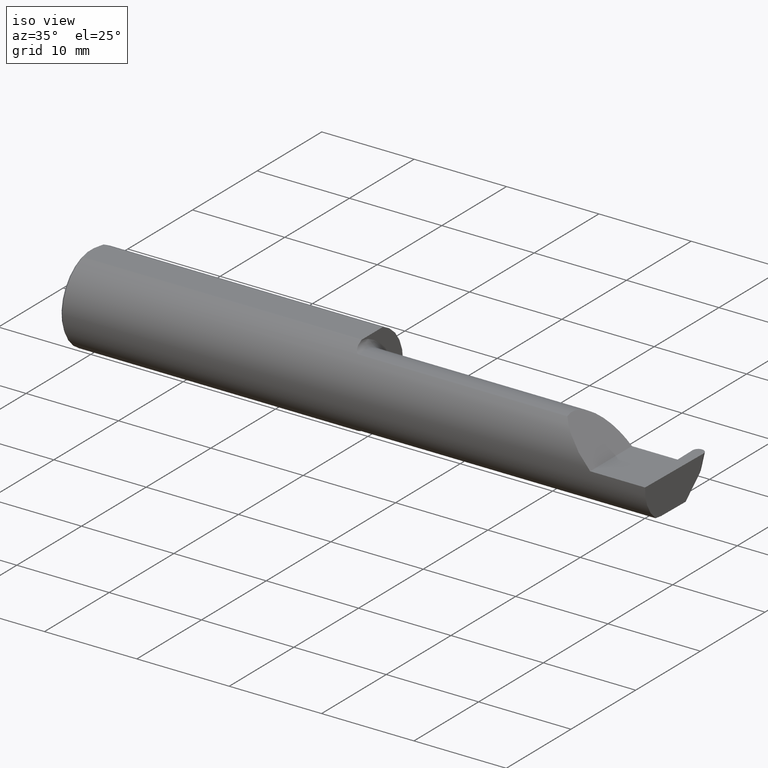
[diagram: clean part render]
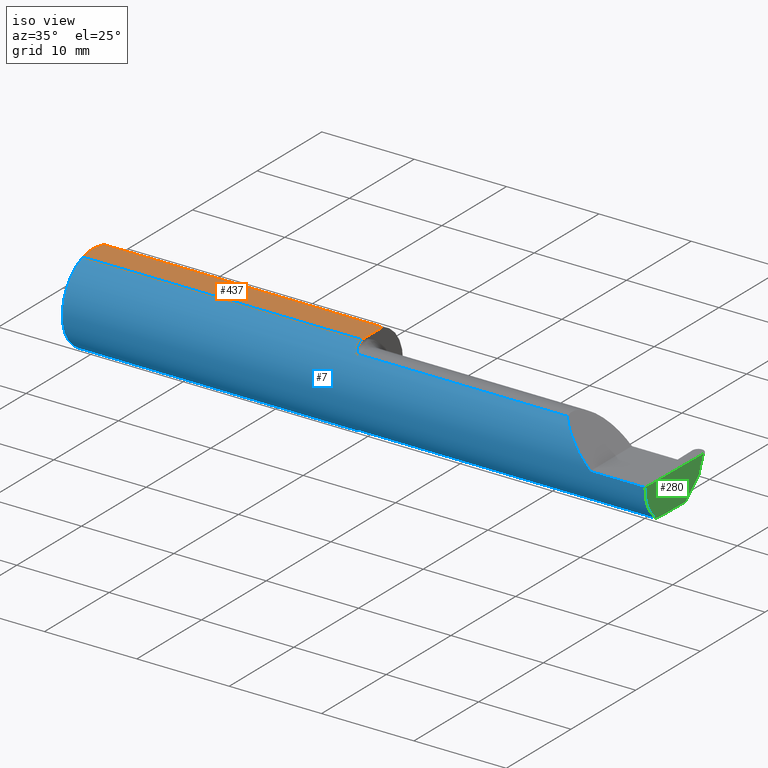
[diagram: same view with three faces highlighted in distinct colors, each labeled with its STEP entity id]
A machine part, iso view with three faces highlighted in distinct colors.
Their STEP definitions:

[orange] entity #437 — the highlighted planar face has unit normal (0, 0, 1).
#3 = LINE ( 'NONE', #265, #423 ) ;
#12 = DIRECTION ( 'NONE',  ( -6.813485650141123812E-17, 1.000000000000000000, 0.000000000000000000 ) ) ;
#13 = LINE ( 'NONE', #669, #501 ) ;
#20 = CARTESIAN_POINT ( 'NONE',  ( 0.000000000000000000, 0.01880691362238934988, 0.1763499999999999235 ) ) ;
#31 = CARTESIAN_POINT ( 'NONE',  ( 0.01000000000000013205, -0.06325108694718235836, 0.1763499999999999235 ) ) ;
#37 = CARTESIAN_POINT ( 'NONE',  ( 0.000000000000000000, -0.01880691362238934641, 0.1763499999999999235 ) ) ;
#81 = LINE ( 'NONE', #347, #158 ) ;
#83 = EDGE_CURVE ( 'NONE', #698, #304, #13, .T. ) ;
#109 = CARTESIAN_POINT ( 'NONE',  ( 1.199999999999999956, 0.06325108694718235836, 0.1763499999999999235 ) ) ;
#123 = LINE ( 'NONE', #204, #469 ) ;
#130 = CARTESIAN_POINT ( 'NONE',  ( 0.001616639753276021213, 0.03405189565400638246, 0.1763499999999999235 ) ) ;
#140 = CARTESIAN_POINT ( 'NONE',  ( 0.000000000000000000, 0.01880691362238934988, 0.1763499999999999235 ) ) ;
#144 = ORIENTED_EDGE ( 'NONE', *, *, #657, .F. ) ;
#158 = VECTOR ( 'NONE', #297, 39.37007874015748143 ) ;
#160 = ORIENTED_EDGE ( 'NONE', *, *, #600, .T. ) ;
#181 = DIRECTION ( 'NONE',  ( 0.000000000000000000, 0.000000000000000000, 1.000000000000000000 ) ) ;
#191 = FACE_OUTER_BOUND ( 'NONE', #561, .T. ) ;
#196 = ORIENTED_EDGE ( 'NONE', *, *, #553, .F. ) ;
#204 = CARTESIAN_POINT ( 'NONE',  ( 0.000000000000000000, -0.06325108694718235836, 0.1763499999999999235 ) ) ;
#208 = DIRECTION ( 'NONE',  ( -0.000000000000000000, 1.000000000000000000, -0.000000000000000000 ) ) ;
#265 = CARTESIAN_POINT ( 'NONE',  ( 0.000000000000000000, 0.1873499999999998500, 0.1763499999999999235 ) ) ;
#277 = CARTESIAN_POINT ( 'NONE',  ( 2.876828993045917215, 0.1873499999999998500, 0.1763499999999999235 ) ) ;
#283 = EDGE_CURVE ( 'NONE', #584, #706, #3, .T. ) ;
#289 = CARTESIAN_POINT ( 'NONE',  ( 0.005151108632379722968, -0.04888864921576022843, 0.1763499999999999235 ) ) ;
#291 = CARTESIAN_POINT ( 'NONE',  ( 1.199999999999999956, -0.06325108694718287183, 0.1763499999999999235 ) ) ;
#297 = DIRECTION ( 'NONE',  ( -1.000000000000000000, -0.000000000000000000, -0.000000000000000000 ) ) ;
#302 = DIRECTION ( 'NONE',  ( 1.000000000000000000, 0.000000000000000000, 0.000000000000000000 ) ) ;
#304 = VERTEX_POINT ( 'NONE', #109 ) ;
#347 = CARTESIAN_POINT ( 'NONE',  ( 0.000000000000000000, 0.06325108694718235836, 0.1763499999999999235 ) ) ;
#351 = CARTESIAN_POINT ( 'NONE',  ( 0.005155213631852488369, 0.04890080824240059659, 0.1763499999999999235 ) ) ;
#353 = CARTESIAN_POINT ( 'NONE',  ( 0.000000000000000000, -0.01880691362238934641, 0.1763499999999999235 ) ) ;
#365 = ORIENTED_EDGE ( 'NONE', *, *, #83, .T. ) ;
#389 = DIRECTION ( 'NONE',  ( 1.000000000000000000, 0.000000000000000000, -0.000000000000000000 ) ) ;
#395 = CARTESIAN_POINT ( 'NONE',  ( 0.001595548104417008695, -0.03385300050298640367, 0.1763499999999999235 ) ) ;
#423 = VECTOR ( 'NONE', #208, 39.37007874015748143 ) ;
#437 = ADVANCED_FACE ( 'NONE', ( #191 ), #505, .T. ) ;
#441 = EDGE_CURVE ( 'NONE', #533, #698, #123, .T. ) ;
#469 = VECTOR ( 'NONE', #302, 39.37007874015748143 ) ;
#478 = CARTESIAN_POINT ( 'NONE',  ( 0.01000000000000013205, 0.06325108694718235836, 0.1763499999999999235 ) ) ;
#495 = AXIS2_PLACEMENT_3D ( 'NONE', #277, #181, #389 ) ;
#501 = VECTOR ( 'NONE', #12, 39.37007874015748143 ) ;
#505 = PLANE ( 'NONE',  #495 ) ;
#510 = B_SPLINE_CURVE_WITH_KNOTS ( 'NONE', 3,
 ( #140, #130, #351, #574 ),
 .UNSPECIFIED., .F., .F.,
 ( 4, 4 ),
 ( 0.01188664626022242071, 0.01304646959483746725 ),
 .UNSPECIFIED. ) ;
#533 = VERTEX_POINT ( 'NONE', #31 ) ;
#544 = ORIENTED_EDGE ( 'NONE', *, *, #283, .F. ) ;
#553 = EDGE_CURVE ( 'NONE', #533, #584, #606, .T. ) ;
#561 = EDGE_LOOP ( 'NONE', ( #644, #365, #160, #144, #544, #196 ) ) ;
#574 = CARTESIAN_POINT ( 'NONE',  ( 0.01000000000000013205, 0.06325108694718235836, 0.1763499999999999235 ) ) ;
#584 = VERTEX_POINT ( 'NONE', #37 ) ;
#600 = EDGE_CURVE ( 'NONE', #304, #638, #81, .T. ) ;
#606 = B_SPLINE_CURVE_WITH_KNOTS ( 'NONE', 3,
 ( #641, #289, #395, #353 ),
 .UNSPECIFIED., .F., .F.,
 ( 4, 4 ),
 ( 0.009771445421851331775, 0.01092787937989104369 ),
 .UNSPECIFIED. ) ;
#638 = VERTEX_POINT ( 'NONE', #478 ) ;
#641 = CARTESIAN_POINT ( 'NONE',  ( 0.01000000000000013205, -0.06325108694718235836, 0.1763499999999999235 ) ) ;
#644 = ORIENTED_EDGE ( 'NONE', *, *, #441, .T. ) ;
#657 = EDGE_CURVE ( 'NONE', #706, #638, #510, .T. ) ;
#669 = CARTESIAN_POINT ( 'NONE',  ( 1.199999999999999956, 0.1873499999999997390, 0.1763499999999999235 ) ) ;
#698 = VERTEX_POINT ( 'NONE', #291 ) ;
#706 = VERTEX_POINT ( 'NONE', #20 ) ;

[blue] entity #7 — the highlighted cylindrical surface (partial cylindrical patch) has radius 4.7587 mm, axis along (-1, -0, -0).
#7 = ADVANCED_FACE ( 'NONE', ( #267 ), #610, .T. ) ;
#8 = CARTESIAN_POINT ( 'NONE',  ( 1.213163223656403167, -0.1119926267047279267, 0.1502091925606061362 ) ) ;
#27 = DIRECTION ( 'NONE',  ( 0.000000000000000000, 0.000000000000000000, -1.000000000000000000 ) ) ;
#31 = CARTESIAN_POINT ( 'NONE',  ( 0.01000000000000013205, -0.06325108694718235836, 0.1763499999999999235 ) ) ;
#32 = ORIENTED_EDGE ( 'NONE', *, *, #316, .T. ) ;
#40 = B_SPLINE_CURVE_WITH_KNOTS ( 'NONE', 3,
 ( #118, #328, #563, #616, #281, #121, #231, #8, #663, #554, #60, #68 ),
 .UNSPECIFIED., .F., .F.,
 ( 4, 2, 2, 2, 2, 4 ),
 ( 4.423516731080811751E-05, 0.0004615475116586734692, 0.0008788598560065388277, 0.001296172200354404240, 0.001504828372528336025, 0.001713484544702268027 ),
 .UNSPECIFIED. ) ;
#47 = AXIS2_PLACEMENT_3D ( 'NONE', #89, #454, #666 ) ;
#59 = CARTESIAN_POINT ( 'NONE',  ( 1.215028532764138580, -0.1137241120808236416, -0.1488947809299402958 ) ) ;
#60 = CARTESIAN_POINT ( 'NONE',  ( 1.222161949849308371, -0.1172600179964063821, 0.1461167706989258686 ) ) ;
#61 = EDGE_CURVE ( 'NONE', #521, #146, #40, .T. ) ;
#62 = CARTESIAN_POINT ( 'NONE',  ( 1.206304331342287650, -0.1022198306720692035, -0.1570962426853817762 ) ) ;
#64 = ORIENTED_EDGE ( 'NONE', *, *, #600, .F. ) ;
#66 = CARTESIAN_POINT ( 'NONE',  ( 1.200358271039144276, -0.07873626113568087115, -0.1700887912276896063 ) ) ;
#68 = CARTESIAN_POINT ( 'NONE',  ( 1.225000000000000089, -0.1172600179964007477, 0.1461167706989301984 ) ) ;
#70 = EDGE_CURVE ( 'NONE', #447, #631, #455, .T. ) ;
#76 = CARTESIAN_POINT ( 'NONE',  ( 1.199999999999999956, -0.06851976604679066440, -0.1743704796142198643 ) ) ;
#77 = VERTEX_POINT ( 'NONE', #182 ) ;
#81 = LINE ( 'NONE', #347, #158 ) ;
#89 = CARTESIAN_POINT ( 'NONE',  ( 1.199999999999999956, 0.000000000000000000, 0.000000000000000000 ) ) ;
#92 = CIRCLE ( 'NONE', #570, 0.1873499999999999888 ) ;
#93 = CARTESIAN_POINT ( 'NONE',  ( 2.491901754046578876, -0.1873499999999999610, -0.05781030015605118783 ) ) ;
#109 = CARTESIAN_POINT ( 'NONE',  ( 1.199999999999999956, 0.06325108694718235836, 0.1763499999999999235 ) ) ;
#118 = CARTESIAN_POINT ( 'NONE',  ( 1.199999999999999956, -0.06851976604679066440, 0.1743704796142198643 ) ) ;
#121 = CARTESIAN_POINT ( 'NONE',  ( 1.206287624083520305, -0.1021858045380147212, 0.1571187174372874473 ) ) ;
#123 = LINE ( 'NONE', #204, #469 ) ;
#132 = DIRECTION ( 'NONE',  ( 0.000000000000000000, 1.000000000000000000, 0.000000000000000000 ) ) ;
#145 = CARTESIAN_POINT ( 'NONE',  ( 2.150065971957465294, -0.1623470442677542591, 0.1099340280425336325 ) ) ;
#146 = VERTEX_POINT ( 'NONE', #681 ) ;
#150 = LINE ( 'NONE', #359, #176 ) ;
#158 = VECTOR ( 'NONE', #297, 39.37007874015748143 ) ;
#163 = VERTEX_POINT ( 'NONE', #515 ) ;
#165 = ORIENTED_EDGE ( 'NONE', *, *, #410, .F. ) ;
#172 = CARTESIAN_POINT ( 'NONE',  ( 1.219511795768554840, -0.1163687266324236191, -0.1468371510166787963 ) ) ;
#176 = VECTOR ( 'NONE', #583, 39.37007874015748143 ) ;
#180 = DIRECTION ( 'NONE',  ( 0.000000000000000000, 0.000000000000000000, 1.000000000000000000 ) ) ;
#182 = CARTESIAN_POINT ( 'NONE',  ( 2.260000000000000231, -0.1873499999999999888, 2.939152317953647352E-17 ) ) ;
#203 = ORIENTED_EDGE ( 'NONE', *, *, #518, .F. ) ;
#204 = CARTESIAN_POINT ( 'NONE',  ( 0.000000000000000000, -0.06325108694718235836, 0.1763499999999999235 ) ) ;
#205 = CARTESIAN_POINT ( 'NONE',  ( 2.490517704308097713, -0.1623470442677541203, -0.1099340280425337990 ) ) ;
#210 = ORIENTED_EDGE ( 'NONE', *, *, #477, .T. ) ;
#211 = EDGE_CURVE ( 'NONE', #77, #282, #417, .T. ) ;
#213 = LINE ( 'NONE', #422, #651 ) ;
#231 = CARTESIAN_POINT ( 'NONE',  ( 1.208475602106621416, -0.1064978748893407601, 0.1542035505680382779 ) ) ;
#242 = EDGE_CURVE ( 'NONE', #163, #447, #150, .T. ) ;
#243 = CARTESIAN_POINT ( 'NONE',  ( 0.01000000000000013205, 0.000000000000000000, 0.000000000000000000 ) ) ;
#249 = ORIENTED_EDGE ( 'NONE', *, *, #708, .T. ) ;
#261 = CARTESIAN_POINT ( 'NONE',  ( 2.113883229301068312, -0.1172600179964008726, 0.1461167706989301429 ) ) ;
#263 = ORIENTED_EDGE ( 'NONE', *, *, #70, .F. ) ;
#267 = FACE_OUTER_BOUND ( 'NONE', #331, .T. ) ;
#271 = EDGE_CURVE ( 'NONE', #631, #304, #690, .T. ) ;
#275 = CARTESIAN_POINT ( 'NONE',  ( 1.222174967710399462, -0.1172600179964008033, -0.1461167706989301707 ) ) ;
#276 = CARTESIAN_POINT ( 'NONE',  ( 1.202960551809340251, -0.09317341542745753713, -0.1626248379125196653 ) ) ;
#279 = AXIS2_PLACEMENT_3D ( 'NONE', #243, #582, #27 ) ;
#281 = CARTESIAN_POINT ( 'NONE',  ( 1.202945243422983035, -0.09312071749437438040, 0.1626553472577905168 ) ) ;
#282 = VERTEX_POINT ( 'NONE', #261 ) ;
#284 = CARTESIAN_POINT ( 'NONE',  ( 1.208439486659306672, -0.1064616213911159376, -0.1542305641651500192 ) ) ;
#291 = CARTESIAN_POINT ( 'NONE',  ( 1.199999999999999956, -0.06325108694718287183, 0.1763499999999999235 ) ) ;
#293 = CARTESIAN_POINT ( 'NONE',  ( 2.490040979592266446, -0.1172600179964007061, -0.1461167706989302817 ) ) ;
#296 = ORIENTED_EDGE ( 'NONE', *, *, #61, .F. ) ;
#297 = DIRECTION ( 'NONE',  ( -1.000000000000000000, -0.000000000000000000, -0.000000000000000000 ) ) ;
#301 = ORIENTED_EDGE ( 'NONE', *, *, #562, .T. ) ;
#302 = DIRECTION ( 'NONE',  ( 1.000000000000000000, 0.000000000000000000, 0.000000000000000000 ) ) ;
#304 = VERTEX_POINT ( 'NONE', #109 ) ;
#316 = EDGE_CURVE ( 'NONE', #533, #577, #92, .T. ) ;
#323 = ORIENTED_EDGE ( 'NONE', *, *, #271, .F. ) ;
#328 = CARTESIAN_POINT ( 'NONE',  ( 1.199999999999999956, -0.07367581953296710451, 0.1723443821957855171 ) ) ;
#329 = CARTESIAN_POINT ( 'NONE',  ( 1.225000000000000089, -0.1172600179964008171, -0.1461167706989301984 ) ) ;
#331 = EDGE_LOOP ( 'NONE', ( #629, #301, #210, #445, #165, #296, #203, #650, #32, #249, #64, #323, #263 ) ) ;
#345 = DIRECTION ( 'NONE',  ( -1.000000000000000000, -0.000000000000000000, -0.000000000000000000 ) ) ;
#347 = CARTESIAN_POINT ( 'NONE',  ( 0.000000000000000000, 0.06325108694718235836, 0.1763499999999999235 ) ) ;
#354 = CARTESIAN_POINT ( 'NONE',  ( 2.113883229301068312, -0.1172600179964008726, 0.1461167706989301429 ) ) ;
#359 = CARTESIAN_POINT ( 'NONE',  ( 1.838979999999999837, -0.1172600179964007477, -0.1461167706989302817 ) ) ;
#367 = DIRECTION ( 'NONE',  ( 1.000000000000000000, 6.813485650141123812E-17, 0.000000000000000000 ) ) ;
#381 = DIRECTION ( 'NONE',  ( -1.000000000000000000, -0.000000000000000000, -0.000000000000000000 ) ) ;
#399 = CARTESIAN_POINT ( 'NONE',  ( 2.493920841729410753, -0.1873499999999999888, 0.000000000000000000 ) ) ;
#410 = EDGE_CURVE ( 'NONE', #146, #282, #213, .T. ) ;
#417 =( BOUNDED_CURVE ( )  B_SPLINE_CURVE ( 3, ( #639, #470, #145, #354 ),
 .UNSPECIFIED., .F., .T. ) 
 B_SPLINE_CURVE_WITH_KNOTS ( ( 4, 4 ),
 ( 4.712388980384688786, 5.606916381293135743 ),
 .UNSPECIFIED. ) 
 CURVE ( )  GEOMETRIC_REPRESENTATION_ITEM ( )  RATIONAL_B_SPLINE_CURVE ( ( 1.000000000000000000, 0.9344226172588803170, 0.9344226172588803170, 1.000000000000000000 ) ) 
 REPRESENTATION_ITEM ( '' )  );
#422 = CARTESIAN_POINT ( 'NONE',  ( 1.838979999999999837, -0.1172600179964007477, 0.1461167706989302817 ) ) ;
#441 = EDGE_CURVE ( 'NONE', #533, #698, #123, .T. ) ;
#445 = ORIENTED_EDGE ( 'NONE', *, *, #211, .T. ) ;
#447 = VERTEX_POINT ( 'NONE', #585 ) ;
#454 = DIRECTION ( 'NONE',  ( 1.000000000000000000, 6.813485650141123812E-17, 0.000000000000000000 ) ) ;
#455 = B_SPLINE_CURVE_WITH_KNOTS ( 'NONE', 3,
 ( #329, #275, #172, #59, #556, #284, #62, #276, #498, #66, #500, #497 ),
 .UNSPECIFIED., .F., .F.,
 ( 4, 2, 2, 2, 2, 4 ),
 ( 1.967976973692733563E-07, 0.0002120314145722270013, 0.0004238660314470846929, 0.0008475352651968001303, 0.001271204498946515568, 0.001694873732696231114 ),
 .UNSPECIFIED. ) ;
#469 = VECTOR ( 'NONE', #302, 39.37007874015748143 ) ;
#470 = CARTESIAN_POINT ( 'NONE',  ( 2.202189699843948745, -0.1873500000000000443, 0.05781030015605096578 ) ) ;
#476 = LINE ( 'NONE', #640, #589 ) ;
#477 = EDGE_CURVE ( 'NONE', #598, #77, #476, .T. ) ;
#478 = CARTESIAN_POINT ( 'NONE',  ( 0.01000000000000013205, 0.06325108694718235836, 0.1763499999999999235 ) ) ;
#481 = DIRECTION ( 'NONE',  ( 1.000000000000000000, 0.000000000000000000, 0.000000000000000000 ) ) ;
#486 = DIRECTION ( 'NONE',  ( 0.000000000000000000, 0.000000000000000000, -1.000000000000000000 ) ) ;
#497 = CARTESIAN_POINT ( 'NONE',  ( 1.199999999999999956, -0.06851976604679066440, -0.1743704796142198643 ) ) ;
#498 = CARTESIAN_POINT ( 'NONE',  ( 1.201843912362378086, -0.08846956905169094110, -0.1652353808078971809 ) ) ;
#500 = CARTESIAN_POINT ( 'NONE',  ( 1.199999999999999956, -0.07368234487347199990, -0.1723418180300747837 ) ) ;
#515 = CARTESIAN_POINT ( 'NONE',  ( 2.490040979592266446, -0.1172600179964007061, -0.1461167706989302817 ) ) ;
#518 = EDGE_CURVE ( 'NONE', #698, #521, #559, .T. ) ;
#521 = VERTEX_POINT ( 'NONE', #686 ) ;
#527 = CARTESIAN_POINT ( 'NONE',  ( 0.01000000000000013205, 0.000000000000000000, 0.000000000000000000 ) ) ;
#533 = VERTEX_POINT ( 'NONE', #31 ) ;
#539 = CIRCLE ( 'NONE', #279, 0.1873499999999999888 ) ;
#554 = CARTESIAN_POINT ( 'NONE',  ( 1.219481469043492083, -0.1163560528186167731, 0.1468472430636322268 ) ) ;
#556 = CARTESIAN_POINT ( 'NONE',  ( 1.213203859946833996, -0.1120371980050639676, -0.1501764597936558199 ) ) ;
#559 = CIRCLE ( 'NONE', #613, 0.1873499999999999888 ) ;
#560 =( BOUNDED_CURVE ( )  B_SPLINE_CURVE ( 3, ( #293, #205, #93, #630 ),
 .UNSPECIFIED., .F., .F. ) 
 B_SPLINE_CURVE_WITH_KNOTS ( ( 4, 4 ),
 ( 0.2128041086811300886, 1.107331509589577045 ),
 .UNSPECIFIED. ) 
 CURVE ( )  GEOMETRIC_REPRESENTATION_ITEM ( )  RATIONAL_B_SPLINE_CURVE ( ( 1.000000000000000000, 0.9344226172588803170, 0.9344226172588803170, 1.000000000000000000 ) ) 
 REPRESENTATION_ITEM ( '' )  );
#562 = EDGE_CURVE ( 'NONE', #163, #598, #560, .T. ) ;
#563 = CARTESIAN_POINT ( 'NONE',  ( 1.200353553376445115, -0.07868116735658681193, 0.1701139256562800572 ) ) ;
#570 = AXIS2_PLACEMENT_3D ( 'NONE', #527, #481, #486 ) ;
#571 = CARTESIAN_POINT ( 'NONE',  ( 0.01000000000000013205, 0.000000000000000000, -0.1873499999999999888 ) ) ;
#577 = VERTEX_POINT ( 'NONE', #571 ) ;
#582 = DIRECTION ( 'NONE',  ( 1.000000000000000000, 0.000000000000000000, 0.000000000000000000 ) ) ;
#583 = DIRECTION ( 'NONE',  ( -1.000000000000000000, -6.813485650141123812E-17, -0.000000000000000000 ) ) ;
#585 = CARTESIAN_POINT ( 'NONE',  ( 1.225000000000000089, -0.1172600179964008171, -0.1461167706989301984 ) ) ;
#589 = VECTOR ( 'NONE', #345, 39.37007874015748143 ) ;
#598 = VERTEX_POINT ( 'NONE', #399 ) ;
#599 = AXIS2_PLACEMENT_3D ( 'NONE', #623, #381, #180 ) ;
#600 = EDGE_CURVE ( 'NONE', #304, #638, #81, .T. ) ;
#610 = CYLINDRICAL_SURFACE ( 'NONE', #599, 0.1873499999999999888 ) ;
#613 = AXIS2_PLACEMENT_3D ( 'NONE', #677, #696, #132 ) ;
#616 = CARTESIAN_POINT ( 'NONE',  ( 1.201829077486400443, -0.08839624499054657414, 0.1652742498708036911 ) ) ;
#623 = CARTESIAN_POINT ( 'NONE',  ( 0.000000000000000000, 0.000000000000000000, 0.000000000000000000 ) ) ;
#629 = ORIENTED_EDGE ( 'NONE', *, *, #242, .F. ) ;
#630 = CARTESIAN_POINT ( 'NONE',  ( 2.493920841729410753, -0.1873499999999999888, 0.000000000000000000 ) ) ;
#631 = VERTEX_POINT ( 'NONE', #76 ) ;
#638 = VERTEX_POINT ( 'NONE', #478 ) ;
#639 = CARTESIAN_POINT ( 'NONE',  ( 2.260000000000000231, -0.1873499999999999888, 2.939152317953647352E-17 ) ) ;
#640 = CARTESIAN_POINT ( 'NONE',  ( 3.749399456654646757E-32, -0.1873499999999999610, 3.061616997868383634E-16 ) ) ;
#650 = ORIENTED_EDGE ( 'NONE', *, *, #441, .F. ) ;
#651 = VECTOR ( 'NONE', #367, 39.37007874015748143 ) ;
#663 = CARTESIAN_POINT ( 'NONE',  ( 1.215004157323697376, -0.1137044537483317963, 0.1489098419202427304 ) ) ;
#666 = DIRECTION ( 'NONE',  ( 0.000000000000000000, 1.000000000000000000, 0.000000000000000000 ) ) ;
#677 = CARTESIAN_POINT ( 'NONE',  ( 1.199999999999999956, 0.000000000000000000, 0.000000000000000000 ) ) ;
#681 = CARTESIAN_POINT ( 'NONE',  ( 1.225000000000000089, -0.1172600179964007477, 0.1461167706989301984 ) ) ;
#686 = CARTESIAN_POINT ( 'NONE',  ( 1.199999999999999956, -0.06851976604679066440, 0.1743704796142198643 ) ) ;
#690 = CIRCLE ( 'NONE', #47, 0.1873499999999999888 ) ;
#696 = DIRECTION ( 'NONE',  ( 1.000000000000000000, 6.813485650141123812E-17, 0.000000000000000000 ) ) ;
#698 = VERTEX_POINT ( 'NONE', #291 ) ;
#708 = EDGE_CURVE ( 'NONE', #577, #638, #539, .T. ) ;

[green] entity #280 — the highlighted planar face has unit normal (-0.9992, 0.0174, 0.0349).
#6 = DIRECTION ( 'NONE',  ( -0.01745240643727576091, -0.9998476951563914916, 0.000000000000000000 ) ) ;
#24 = CARTESIAN_POINT ( 'NONE',  ( 2.490297801769516539, -0.09477667630339420279, -0.1499999999999999667 ) ) ;
#30 = VECTOR ( 'NONE', #245, 39.37007874015748143 ) ;
#34 = CARTESIAN_POINT ( 'NONE',  ( 2.490571174359867967, -0.07911517109126274538, -0.1500000000000000500 ) ) ;
#49 = CARTESIAN_POINT ( 'NONE',  ( 2.499996417790078862, 0.1607195194005952565, 0.000000000000000000 ) ) ;
#52 = CARTESIAN_POINT ( 'NONE',  ( 2.496943030093102145, 0.1354885203010862682, -0.07481453124206370597 ) ) ;
#56 = ORIENTED_EDGE ( 'NONE', *, *, #434, .T. ) ;
#65 = VECTOR ( 'NONE', #671, 39.37007874015748854 ) ;
#69 = EDGE_LOOP ( 'NONE', ( #72, #591, #56, #85, #482, #254 ) ) ;
#72 = ORIENTED_EDGE ( 'NONE', *, *, #509, .F. ) ;
#84 = CARTESIAN_POINT ( 'NONE',  ( 2.490040979592266446, -0.1172600179964007061, -0.1461167706989302817 ) ) ;
#85 = ORIENTED_EDGE ( 'NONE', *, *, #562, .F. ) ;
#93 = CARTESIAN_POINT ( 'NONE',  ( 2.491901754046578876, -0.1873499999999999610, -0.05781030015605118783 ) ) ;
#95 = PLANE ( 'NONE',  #327 ) ;
#105 = VERTEX_POINT ( 'NONE', #229 ) ;
#116 = VECTOR ( 'NONE', #683, 39.37007874015748854 ) ;
#152 = LINE ( 'NONE', #587, #30 ) ;
#161 = EDGE_CURVE ( 'NONE', #163, #105, #621, .T. ) ;
#163 = VERTEX_POINT ( 'NONE', #515 ) ;
#175 = DIRECTION ( 'NONE',  ( 0.03490480639812536257, 0.000000000000000000, 0.9993906415863165194 ) ) ;
#205 = CARTESIAN_POINT ( 'NONE',  ( 2.490517704308097713, -0.1623470442677541203, -0.1099340280425337990 ) ) ;
#229 = CARTESIAN_POINT ( 'NONE',  ( 2.490497255146305822, -0.08334999999999997966, -0.1500000000000000500 ) ) ;
#236 = CARTESIAN_POINT ( 'NONE',  ( 2.493004728488126265, 0.06030305154315079852, -0.1500000000000000500 ) ) ;
#245 = DIRECTION ( 'NONE',  ( -0.03701368837992397021, -0.7066222423871549863, -0.7066222423871630909 ) ) ;
#254 = ORIENTED_EDGE ( 'NONE', *, *, #288, .F. ) ;
#280 = ADVANCED_FACE ( 'NONE', ( #490 ), #95, .F. ) ;
#288 = EDGE_CURVE ( 'NONE', #654, #105, #373, .T. ) ;
#293 = CARTESIAN_POINT ( 'NONE',  ( 2.490040979592266446, -0.1172600179964007061, -0.1461167706989302817 ) ) ;
#310 = LINE ( 'NONE', #467, #116 ) ;
#327 = AXIS2_PLACEMENT_3D ( 'NONE', #49, #538, #175 ) ;
#348 = VERTEX_POINT ( 'NONE', #52 ) ;
#373 = LINE ( 'NONE', #34, #551 ) ;
#399 = CARTESIAN_POINT ( 'NONE',  ( 2.493920841729410753, -0.1873499999999999888, 0.000000000000000000 ) ) ;
#434 = EDGE_CURVE ( 'NONE', #557, #598, #458, .T. ) ;
#458 = LINE ( 'NONE', #682, #65 ) ;
#461 = CARTESIAN_POINT ( 'NONE',  ( 2.490145048687840479, -0.1061291577212409437, -0.1486999626928445506 ) ) ;
#467 = CARTESIAN_POINT ( 'NONE',  ( 2.499991330919623778, 0.1598853660763216722, 0.0002712393593816795224 ) ) ;
#482 = ORIENTED_EDGE ( 'NONE', *, *, #161, .T. ) ;
#490 = FACE_OUTER_BOUND ( 'NONE', #69, .T. ) ;
#494 = EDGE_CURVE ( 'NONE', #348, #557, #310, .T. ) ;
#509 = EDGE_CURVE ( 'NONE', #348, #654, #152, .T. ) ;
#511 = CARTESIAN_POINT ( 'NONE',  ( 2.490497255146305822, -0.08334999999999997966, -0.1500000000000000500 ) ) ;
#515 = CARTESIAN_POINT ( 'NONE',  ( 2.490040979592266446, -0.1172600179964007061, -0.1461167706989302817 ) ) ;
#524 = CARTESIAN_POINT ( 'NONE',  ( 2.499980319257137484, 0.1597972350660649687, 0.000000000000000000 ) ) ;
#538 = DIRECTION ( 'NONE',  ( -0.9992386149554827179, 0.01744177490282240728, 0.03489949670250104552 ) ) ;
#551 = VECTOR ( 'NONE', #6, 39.37007874015747433 ) ;
#557 = VERTEX_POINT ( 'NONE', #524 ) ;
#560 =( BOUNDED_CURVE ( )  B_SPLINE_CURVE ( 3, ( #293, #205, #93, #630 ),
 .UNSPECIFIED., .F., .F. ) 
 B_SPLINE_CURVE_WITH_KNOTS ( ( 4, 4 ),
 ( 0.2128041086811300886, 1.107331509589577045 ),
 .UNSPECIFIED. ) 
 CURVE ( )  GEOMETRIC_REPRESENTATION_ITEM ( )  RATIONAL_B_SPLINE_CURVE ( ( 1.000000000000000000, 0.9344226172588803170, 0.9344226172588803170, 1.000000000000000000 ) ) 
 REPRESENTATION_ITEM ( '' )  );
#562 = EDGE_CURVE ( 'NONE', #163, #598, #560, .T. ) ;
#587 = CARTESIAN_POINT ( 'NONE',  ( 2.495446507120537838, 0.1069186461560726331, -0.1033844053870776880 ) ) ;
#591 = ORIENTED_EDGE ( 'NONE', *, *, #494, .T. ) ;
#598 = VERTEX_POINT ( 'NONE', #399 ) ;
#621 =( BOUNDED_CURVE ( )  B_SPLINE_CURVE ( 3, ( #84, #461, #24, #511 ),
 .UNSPECIFIED., .F., .F. ) 
 B_SPLINE_CURVE_WITH_KNOTS ( ( 4, 4 ),
 ( 0.2354267821558766738, 0.4634648172053215109 ),
 .UNSPECIFIED. ) 
 CURVE ( )  GEOMETRIC_REPRESENTATION_ITEM ( )  RATIONAL_B_SPLINE_CURVE ( ( 1.000000000000000000, 0.9956712472009929815, 0.9956712472009929815, 1.000000000000000000 ) ) 
 REPRESENTATION_ITEM ( '' )  );
#630 = CARTESIAN_POINT ( 'NONE',  ( 2.493920841729410753, -0.1873499999999999888, 0.000000000000000000 ) ) ;
#654 = VERTEX_POINT ( 'NONE', #236 ) ;
#671 = DIRECTION ( 'NONE',  ( -0.01745240643727575397, -0.9998476951563912696, 0.000000000000000000 ) ) ;
#682 = CARTESIAN_POINT ( 'NONE',  ( 2.499996417790078862, 0.1607195194005952565, 0.000000000000000000 ) ) ;
#683 = DIRECTION ( 'NONE',  ( 0.03858184836401778312, 0.3087869137032490108, 0.9503484007996426675 ) ) ;